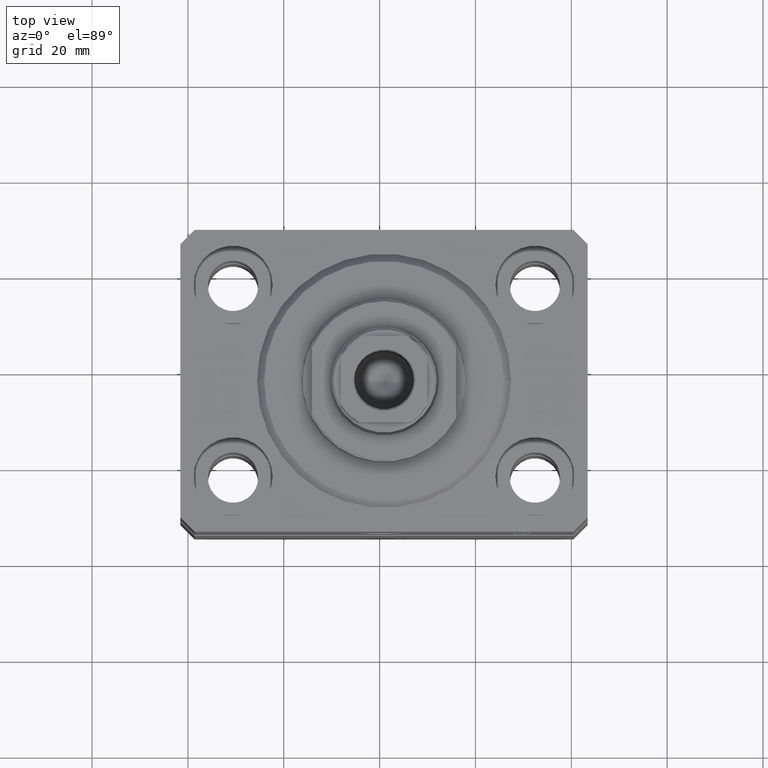
[diagram: clean part render]
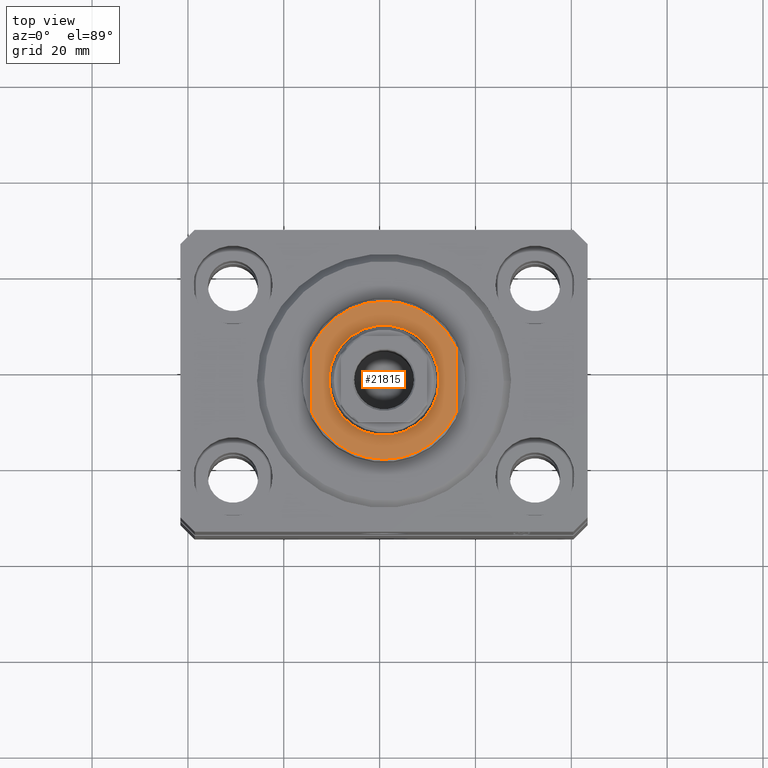
[diagram: same view with one face highlighted and labeled with its STEP entity id]
A machine part, top view. The second image highlights one B-rep face of the part: STEP entity #21815.
In plain terms, the highlighted planar face has unit normal (0, 0, 1).
Its self-contained STEP definition (entity closure, byte-faithful):
#35 = EDGE_CURVE ( 'NONE', #27169, #40316, #44352, .T. ) ;
#845 = EDGE_CURVE ( 'NONE', #25493, #27169, #42496, .T. ) ;
#944 = EDGE_LOOP ( 'NONE', ( #26063, #1614, #24658, #24260 ) ) ;
#1573 = EDGE_CURVE ( 'NONE', #36679, #40316, #41331, .T. ) ;
#1614 = ORIENTED_EDGE ( 'NONE', *, *, #845, .T. ) ;
#3457 = CARTESIAN_POINT ( 'NONE',  ( -14.99999999999999645, 6.873863542433817031, -7.000000000000000000 ) ) ;
#3977 = PLANE ( 'NONE',  #25240 ) ;
#4122 = DIRECTION ( 'NONE',  ( -1.000000000000000000, 0.000000000000000000, 0.000000000000000000 ) ) ;
#4660 = CARTESIAN_POINT ( 'NONE',  ( 14.99999999999999645, 6.873863542433817031, -7.000000000000000000 ) ) ;
#5800 = CIRCLE ( 'NONE', #6485, 11.50000000000001776 ) ;
#6485 = AXIS2_PLACEMENT_3D ( 'NONE', #32096, #42294, #25065 ) ;
#7382 = FACE_BOUND ( 'NONE', #14346, .T. ) ;
#9574 = CARTESIAN_POINT ( 'NONE',  ( -11.50000000000001776, 0.000000000000000000, -7.000000000000000000 ) ) ;
#9725 = CARTESIAN_POINT ( 'NONE',  ( 0.000000000000000000, 0.000000000000000000, -7.000000000000000000 ) ) ;
#10693 = AXIS2_PLACEMENT_3D ( 'NONE', #9725, #34446, #16737 ) ;
#10723 = ORIENTED_EDGE ( 'NONE', *, *, #39749, .T. ) ;
#13458 = CARTESIAN_POINT ( 'NONE',  ( 11.50000000000001776, 1.408343819019458543E-15, -7.000000000000000000 ) ) ;
#13523 = DIRECTION ( 'NONE',  ( 0.000000000000000000, 0.000000000000000000, -1.000000000000000000 ) ) ;
#13645 = CIRCLE ( 'NONE', #44064, 16.50000000000002132 ) ;
#14122 = CARTESIAN_POINT ( 'NONE',  ( 15.00000000000000000, -42.42640687119285303, -7.000000000000000000 ) ) ;
#14346 = EDGE_LOOP ( 'NONE', ( #36868, #10723 ) ) ;
#16737 = DIRECTION ( 'NONE',  ( -1.000000000000000000, 0.000000000000000000, 0.000000000000000000 ) ) ;
#17808 = CARTESIAN_POINT ( 'NONE',  ( 0.000000000000000000, 0.000000000000000000, -7.000000000000000000 ) ) ;
#17903 = CIRCLE ( 'NONE', #10693, 11.50000000000001776 ) ;
#20462 = AXIS2_PLACEMENT_3D ( 'NONE', #22744, #25927, #36588 ) ;
#21207 = VECTOR ( 'NONE', #34515, 1000.000000000000000 ) ;
#21815 = ADVANCED_FACE ( 'NONE', ( #7382, #35070 ), #3977, .T. ) ;
#22744 = CARTESIAN_POINT ( 'NONE',  ( 0.000000000000000000, 0.000000000000000000, -7.000000000000000000 ) ) ;
#23664 = EDGE_CURVE ( 'NONE', #36679, #25493, #13645, .T. ) ;
#24260 = ORIENTED_EDGE ( 'NONE', *, *, #1573, .F. ) ;
#24531 = CARTESIAN_POINT ( 'NONE',  ( -15.00000000000000000, -42.42640687119285303, -7.000000000000000000 ) ) ;
#24582 = CARTESIAN_POINT ( 'NONE',  ( -14.99999999999999645, -6.873863542433817031, -7.000000000000000000 ) ) ;
#24658 = ORIENTED_EDGE ( 'NONE', *, *, #35, .T. ) ;
#24771 = DIRECTION ( 'NONE',  ( 0.000000000000000000, 0.000000000000000000, -1.000000000000000000 ) ) ;
#25065 = DIRECTION ( 'NONE',  ( -1.000000000000000000, 0.000000000000000000, 0.000000000000000000 ) ) ;
#25240 = AXIS2_PLACEMENT_3D ( 'NONE', #17808, #13523, #31675 ) ;
#25493 = VERTEX_POINT ( 'NONE', #4660 ) ;
#25927 = DIRECTION ( 'NONE',  ( 0.000000000000000000, 0.000000000000000000, -1.000000000000000000 ) ) ;
#26063 = ORIENTED_EDGE ( 'NONE', *, *, #23664, .T. ) ;
#27169 = VERTEX_POINT ( 'NONE', #38102 ) ;
#27482 = EDGE_CURVE ( 'NONE', #40643, #36249, #5800, .T. ) ;
#29240 = CARTESIAN_POINT ( 'NONE',  ( 0.000000000000000000, 0.000000000000000000, -7.000000000000000000 ) ) ;
#31675 = DIRECTION ( 'NONE',  ( -1.000000000000000000, 0.000000000000000000, -0.000000000000000000 ) ) ;
#32065 = DIRECTION ( 'NONE',  ( 0.000000000000000000, -1.000000000000000000, -0.000000000000000000 ) ) ;
#32096 = CARTESIAN_POINT ( 'NONE',  ( 0.000000000000000000, 0.000000000000000000, -7.000000000000000000 ) ) ;
#33508 = VECTOR ( 'NONE', #32065, 1000.000000000000000 ) ;
#34446 = DIRECTION ( 'NONE',  ( -0.000000000000000000, -0.000000000000000000, 1.000000000000000000 ) ) ;
#34515 = DIRECTION ( 'NONE',  ( -0.000000000000000000, -1.000000000000000000, -0.000000000000000000 ) ) ;
#35070 = FACE_OUTER_BOUND ( 'NONE', #944, .T. ) ;
#36249 = VERTEX_POINT ( 'NONE', #13458 ) ;
#36588 = DIRECTION ( 'NONE',  ( -1.000000000000000000, 0.000000000000000000, 0.000000000000000000 ) ) ;
#36679 = VERTEX_POINT ( 'NONE', #3457 ) ;
#36868 = ORIENTED_EDGE ( 'NONE', *, *, #27482, .T. ) ;
#38102 = CARTESIAN_POINT ( 'NONE',  ( 14.99999999999999645, -6.873863542433817031, -7.000000000000000000 ) ) ;
#39749 = EDGE_CURVE ( 'NONE', #36249, #40643, #17903, .T. ) ;
#40316 = VERTEX_POINT ( 'NONE', #24582 ) ;
#40643 = VERTEX_POINT ( 'NONE', #9574 ) ;
#41331 = LINE ( 'NONE', #24531, #21207 ) ;
#42294 = DIRECTION ( 'NONE',  ( -0.000000000000000000, -0.000000000000000000, 1.000000000000000000 ) ) ;
#42496 = LINE ( 'NONE', #14122, #33508 ) ;
#44064 = AXIS2_PLACEMENT_3D ( 'NONE', #29240, #24771, #4122 ) ;
#44352 = CIRCLE ( 'NONE', #20462, 16.50000000000002132 ) ;